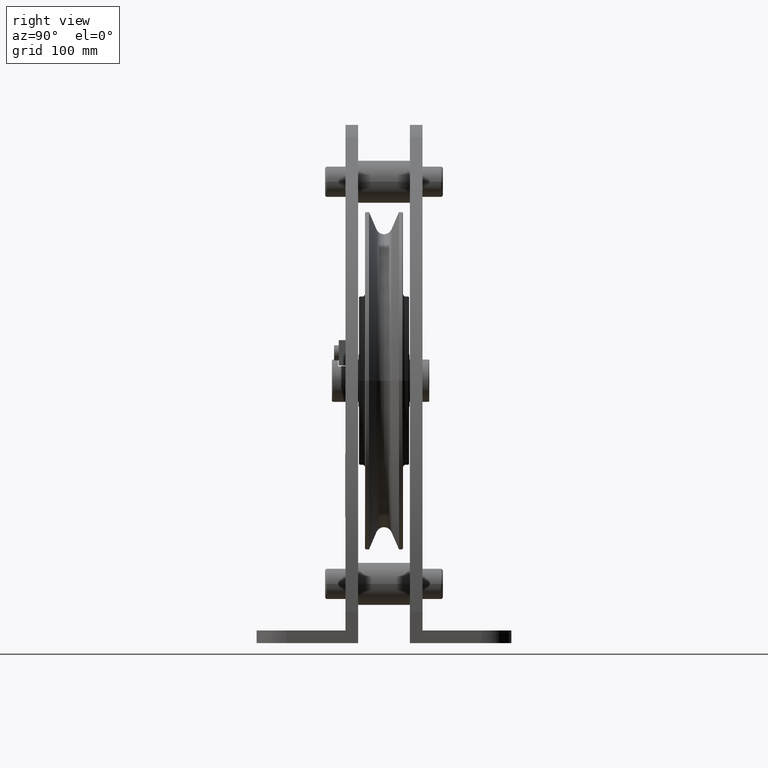
[diagram: clean part render]
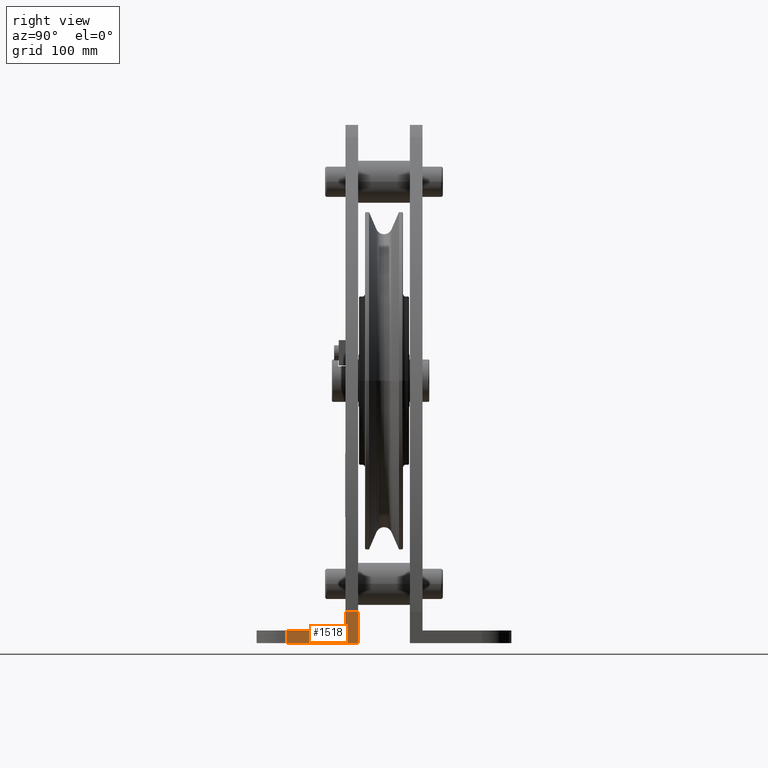
[diagram: same view with one face highlighted and labeled with its STEP entity id]
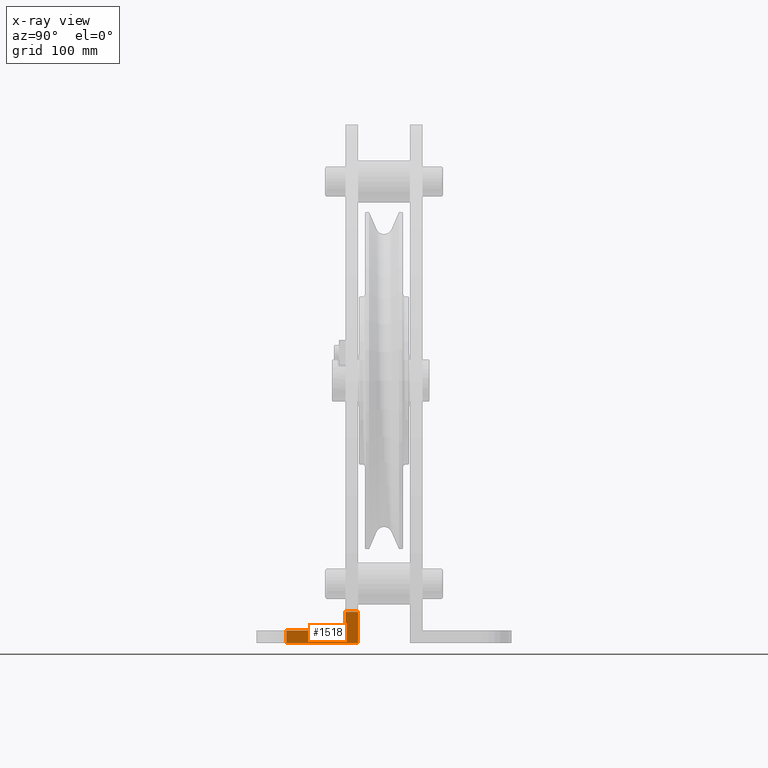
[diagram: x-ray of the same camera — body ghosted, the highlighted face saturated]
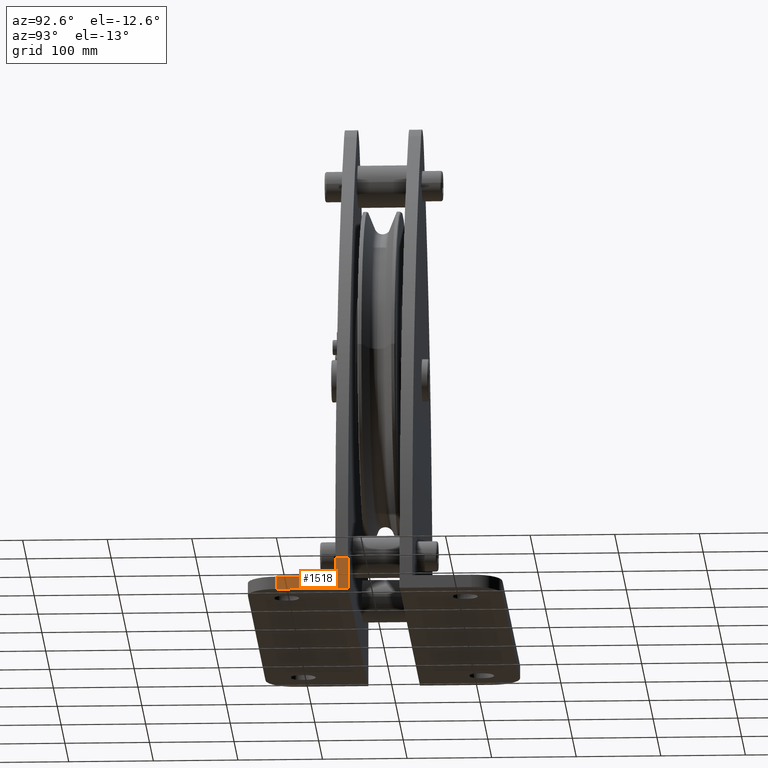
[diagram: same view with one face highlighted and labeled with its STEP entity id]
A machine part, right view. The second image highlights one B-rep face of the part: STEP entity #1518.
The next image is the same camera in x-ray: the body ghosted, the highlighted face saturated — about 0% of this face is hidden behind the body in this view.
A second angle (auxiliary view) of the same face is appended — the face is thin or edge-on in the first view.
In plain terms, the highlighted planar face has unit normal (1, 0, -0).
Its self-contained STEP definition (entity closure, byte-faithful):
#1518=ADVANCED_FACE('',(#3300),#3301,.T.);
#3300=FACE_OUTER_BOUND('',#5332,.T.);
#3301=PLANE('',#5333);
#5332=EDGE_LOOP('',(#10133,#10134,#10135,#10136,#10137,#10138));
#5333=AXIS2_PLACEMENT_3D('',#10139,#10140,#10141);
#10133=ORIENTED_EDGE('',*,*,#12859,.T.);
#10134=ORIENTED_EDGE('',*,*,#13886,.T.);
#10135=ORIENTED_EDGE('',*,*,#13887,.F.);
#10136=ORIENTED_EDGE('',*,*,#13881,.F.);
#10137=ORIENTED_EDGE('',*,*,#13862,.T.);
#10138=ORIENTED_EDGE('',*,*,#13888,.T.);
#10139=CARTESIAN_POINT('',(265.0,-30.5,-291.532768555));
#10140=DIRECTION('',(1.0,0.0,-0.0));
#10141=DIRECTION('',(0.0,0.0,1.0));
#12859=EDGE_CURVE('',#15823,#15821,#15824,.T.);
#13862=EDGE_CURVE('',#17214,#17212,#17215,.T.);
#13881=EDGE_CURVE('',#17214,#17245,#17246,.T.);
#13886=EDGE_CURVE('',#15821,#17253,#17254,.T.);
#13887=EDGE_CURVE('',#17245,#17253,#17255,.T.);
#13888=EDGE_CURVE('',#17212,#15823,#17256,.T.);
#15821=VERTEX_POINT('',#22857);
#15823=VERTEX_POINT('',#22860);
#15824=LINE('',#22861,#22862);
#17212=VERTEX_POINT('',#24769);
#17214=VERTEX_POINT('',#24771);
#17215=LINE('',#24772,#24773);
#17245=VERTEX_POINT('',#24814);
#17246=LINE('',#24815,#24816);
#17253=VERTEX_POINT('',#24824);
#17254=LINE('',#24825,#24826);
#17255=LINE('',#24827,#24828);
#17256=LINE('',#24829,#24830);
#22857=CARTESIAN_POINT('',(265.0,-45.5,-295.0));
#22860=CARTESIAN_POINT('',(265.0,-45.5,-273.06553711));
#22861=CARTESIAN_POINT('',(265.0,-45.5,-310.0));
#22862=VECTOR('',#27976,1.0);
#24769=CARTESIAN_POINT('',(265.0,-30.5,-273.06553711));
#24771=CARTESIAN_POINT('',(265.0,-30.5,-310.0));
#24772=CARTESIAN_POINT('',(265.0,-30.5,-310.0));
#24773=VECTOR('',#29000,1.0);
#24814=CARTESIAN_POINT('',(265.0,-115.5,-310.0));
#24815=CARTESIAN_POINT('',(265.0,-30.5,-310.0));
#24816=VECTOR('',#29024,1.0);
#24824=CARTESIAN_POINT('',(265.0,-115.5,-295.0));
#24825=CARTESIAN_POINT('',(265.0,-45.5,-295.0));
#24826=VECTOR('',#29032,1.0);
#24827=CARTESIAN_POINT('',(265.0,-115.5,-310.0));
#24828=VECTOR('',#29033,1.0);
#24829=CARTESIAN_POINT('',(265.0,-30.5,-273.06553711));
#24830=VECTOR('',#29034,1.0);
#27976=DIRECTION('',(-0.0,0.0,-1.0));
#29000=DIRECTION('',(0.0,0.0,1.0));
#29024=DIRECTION('',(0.0,-1.0,0.0));
#29032=DIRECTION('',(0.0,-1.0,0.0));
#29033=DIRECTION('',(0.0,0.0,1.0));
#29034=DIRECTION('',(0.0,-1.0,0.0));